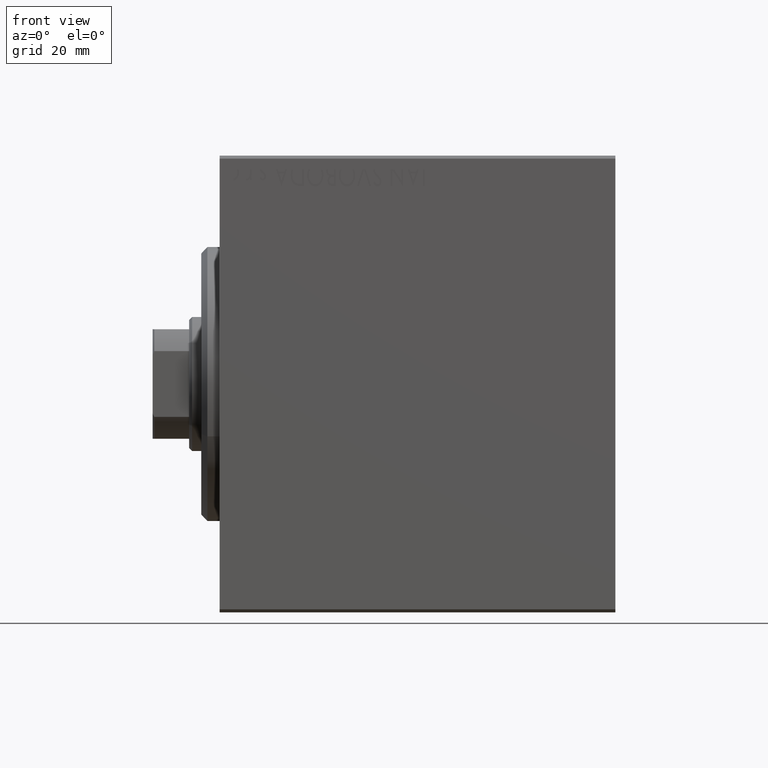
[diagram: clean part render]
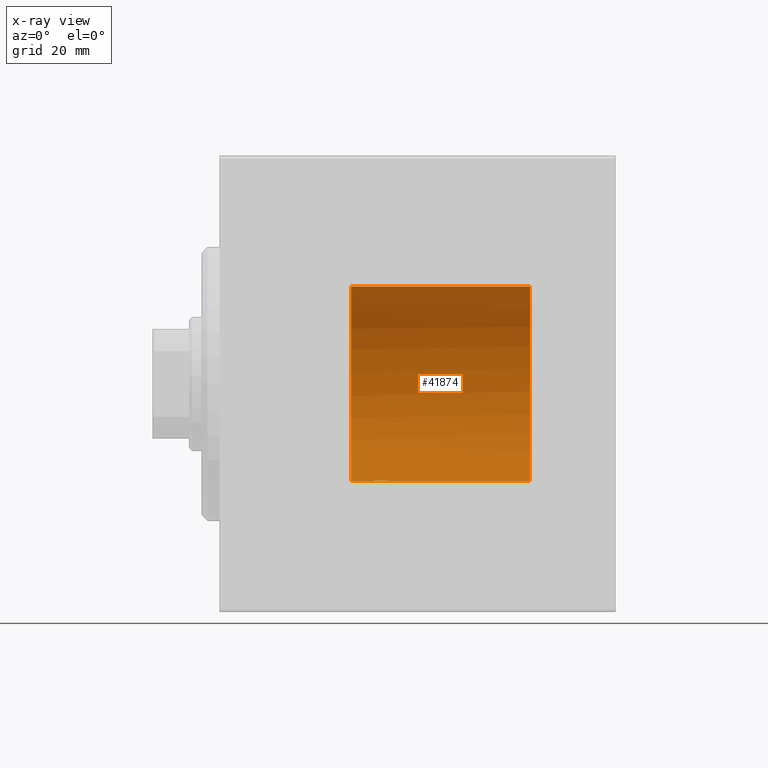
[diagram: x-ray — body ghosted, one internal face saturated and labeled with its STEP entity id]
A machine part, front view, then the same camera in x-ray: the body is ghosted and one INTERNAL B-rep face — a face not visible from any outside direction — is saturated and labeled: STEP entity #41874.
In plain terms, the highlighted cylindrical surface (partial cylindrical patch) has radius 16 mm, axis along (-1, -0, -0).
Its self-contained STEP definition (entity closure, byte-faithful):
#347 = AXIS2_PLACEMENT_3D ( 'NONE', #24368, #26651, #28139 ) ;
#1041 = CIRCLE ( 'NONE', #347, 16.00000000000000000 ) ;
#1245 = CARTESIAN_POINT ( 'NONE',  ( 25.49340818440419199, 1.747750603376302614, -15.90457341008072412 ) ) ;
#1322 = CARTESIAN_POINT ( 'NONE',  ( 50.72464463578930349, 0.9286979439677397474, -15.97335625374555335 ) ) ;
#1685 = VERTEX_POINT ( 'NONE', #29152 ) ;
#2088 = AXIS2_PLACEMENT_3D ( 'NONE', #10164, #20174, #40856 ) ;
#4159 = CARTESIAN_POINT ( 'NONE',  ( 27.82075824828932653, 1.507649250492136606, -15.92908549642227101 ) ) ;
#4378 = CARTESIAN_POINT ( 'NONE',  ( 24.50000000000000000, 0.1322838750249235862, -16.00000000000000355 ) ) ;
#4815 = CARTESIAN_POINT ( 'NONE',  ( 28.23482670674955486, 1.003662148334367954, -15.96885838080211073 ) ) ;
#7281 = CARTESIAN_POINT ( 'NONE',  ( 24.99389287531754178, 1.322357532253823909, -15.94553003295877325 ) ) ;
#7932 = CARTESIAN_POINT ( 'NONE',  ( 28.49999999999999645, 1.959434851239213200E-15, -16.00000000000000000 ) ) ;
#8883 = CARTESIAN_POINT ( 'NONE',  ( 51.00000000000000000, 0.000000000000000000, 16.00000000000000000 ) ) ;
#9117 = VECTOR ( 'NONE', #22094, 1000.000000000000000 ) ;
#9739 = VERTEX_POINT ( 'NONE', #13221 ) ;
#10164 = CARTESIAN_POINT ( 'NONE',  ( 51.00000000000000000, 0.000000000000000000, 0.000000000000000000 ) ) ;
#10618 = CARTESIAN_POINT ( 'NONE',  ( 28.49999999999999645, 0.1305944228192321699, -16.00000000000000000 ) ) ;
#10832 = CARTESIAN_POINT ( 'NONE',  ( 24.60241129944407135, 0.6452446332038127563, -15.98744362947834574 ) ) ;
#10999 = CARTESIAN_POINT ( 'NONE',  ( 24.50000000000000000, -2.103178745110437193E-15, -16.00000000000000000 ) ) ;
#11441 = ORIENTED_EDGE ( 'NONE', *, *, #43290, .F. ) ;
#11566 = CARTESIAN_POINT ( 'NONE',  ( 50.50000000000000000, 1.959434878635765526E-15, -16.00000000000000000 ) ) ;
#12433 = DIRECTION ( 'NONE',  ( -1.000000000000000000, 0.000000000000000000, 0.000000000000000000 ) ) ;
#13221 = CARTESIAN_POINT ( 'NONE',  ( 50.99999999999999289, 1.322875655532287809, -15.94521871910197675 ) ) ;
#14050 = CARTESIAN_POINT ( 'NONE',  ( 51.00000000000000000, 1.959434878635765131E-15, -16.00000000000000000 ) ) ;
#14171 = CARTESIAN_POINT ( 'NONE',  ( 24.70286585251780664, 0.8874076679346751817, -15.97583181162461408 ) ) ;
#14388 = CARTESIAN_POINT ( 'NONE',  ( 25.97468243540595978, 1.947280337074166923, -15.88137861827786779 ) ) ;
#14914 = LINE ( 'NONE', #8883, #38264 ) ;
#15384 = ORIENTED_EDGE ( 'NONE', *, *, #16464, .T. ) ;
#15477 = CARTESIAN_POINT ( 'NONE',  ( 28.49999999999999645, 1.959434851239213200E-15, -16.00000000000000000 ) ) ;
#15737 = ORIENTED_EDGE ( 'NONE', *, *, #41418, .T. ) ;
#16464 = EDGE_CURVE ( 'NONE', #32147, #21236, #25851, .T. ) ;
#17060 = CYLINDRICAL_SURFACE ( 'NONE', #2088, 16.00000000000000000 ) ;
#17738 = CARTESIAN_POINT ( 'NONE',  ( 28.29749928605040665, 0.8866640484200122296, -15.97587307151818514 ) ) ;
#18033 = CARTESIAN_POINT ( 'NONE',  ( 50.67218159183688897, 0.8208159241335455381, -15.97933385611439938 ) ) ;
#18392 = CARTESIAN_POINT ( 'NONE',  ( 27.14386968033013758, 1.898058445420891305, -15.88709929148890510 ) ) ;
#18901 = CARTESIAN_POINT ( 'NONE',  ( 50.99999999999999289, 1.322875655532287809, -15.94521871910197675 ) ) ;
#20174 = DIRECTION ( 'NONE',  ( -1.000000000000000000, -0.000000000000000000, -0.000000000000000000 ) ) ;
#21236 = VERTEX_POINT ( 'NONE', #15477 ) ;
#21726 = CARTESIAN_POINT ( 'NONE',  ( 24.50000000000000000, -2.103178745110437193E-15, -16.00000000000000000 ) ) ;
#21803 = CARTESIAN_POINT ( 'NONE',  ( 50.54367868930802388, 0.4810848027709638819, -15.99437258783358651 ) ) ;
#21902 = CARTESIAN_POINT ( 'NONE',  ( 21.60000000000000142, 1.959434878635765131E-15, -16.00000000000000000 ) ) ;
#22094 = DIRECTION ( 'NONE',  ( -1.000000000000000000, -0.000000000000000000, -0.000000000000000000 ) ) ;
#23288 = EDGE_CURVE ( 'NONE', #1685, #9739, #1041, .T. ) ;
#24192 = CARTESIAN_POINT ( 'NONE',  ( 26.23808537237744787, 1.999903730784159617, -15.87451999516785861 ) ) ;
#24368 = CARTESIAN_POINT ( 'NONE',  ( 51.00000000000000000, 0.000000000000000000, 0.000000000000000000 ) ) ;
#24406 = CARTESIAN_POINT ( 'NONE',  ( 25.27043888260214999, 1.598790766515152173, -15.92099550861380486 ) ) ;
#24614 = CARTESIAN_POINT ( 'NONE',  ( 24.51299475991587329, 0.2623312429553279479, -15.99836091803360105 ) ) ;
#24724 = ORIENTED_EDGE ( 'NONE', *, *, #35395, .T. ) ;
#24921 = CARTESIAN_POINT ( 'NONE',  ( 50.84826768755139881, 1.134084171644547778, -15.96008906528493476 ) ) ;
#25137 = CARTESIAN_POINT ( 'NONE',  ( 50.92027417147126300, 1.232475063237039592, -15.95271869416660060 ) ) ;
#25851 = B_SPLINE_CURVE_WITH_KNOTS ( 'NONE', 3,
 ( #21726, #4378, #24614, #27751, #10832, #14171, #38424, #34636, #7281, #24406, #1245, #14388, #24192, #27962, #31516, #41309, #18392, #38636, #38199, #41091, #4159, #41966, #35291, #4815, #17738, #35071, #31730, #37981, #10618, #7932 ),
 .UNSPECIFIED., .F., .F.,
 ( 4, 2, 2, 2, 2, 2, 2, 2, 2, 2, 2, 2, 2, 2, 4 ),
 ( 6.061338176617876434E-19, 0.0003911894522871146732, 0.0007823789045742288043, 0.001173568356861343261, 0.001564757809148457609, 0.002347136713722686955, 0.003129515618296916518, 0.003520705070584036721, 0.003911894522871156923, 0.004303083975158277993, 0.004694273427445398196, 0.005085462879732518399, 0.005476652332019638601, 0.005867841784306759671, 0.006259031236593879007 ),
 .UNSPECIFIED. ) ;
#26651 = DIRECTION ( 'NONE',  ( -1.000000000000000000, 0.000000000000000000, 0.000000000000000000 ) ) ;
#27295 = FACE_OUTER_BOUND ( 'NONE', #43464, .T. ) ;
#27643 = CIRCLE ( 'NONE', #33330, 16.00000000000000000 ) ;
#27751 = CARTESIAN_POINT ( 'NONE',  ( 24.56388673317935556, 0.5181437283162043661, -15.99211983514074653 ) ) ;
#27962 = CARTESIAN_POINT ( 'NONE',  ( 26.62985308350499025, 2.000047931387146871, -15.87450182760080253 ) ) ;
#28139 = DIRECTION ( 'NONE',  ( 0.000000000000000000, 0.000000000000000000, 1.000000000000000000 ) ) ;
#28386 = ORIENTED_EDGE ( 'NONE', *, *, #36347, .F. ) ;
#28427 = CARTESIAN_POINT ( 'NONE',  ( 21.60000000000000142, 0.000000000000000000, 16.00000000000000000 ) ) ;
#28478 = CARTESIAN_POINT ( 'NONE',  ( 50.50000000000000711, 0.2433491955511186966, -16.00000000000000355 ) ) ;
#28483 = DIRECTION ( 'NONE',  ( -1.000000000000000000, -0.000000000000000000, -0.000000000000000000 ) ) ;
#29152 = CARTESIAN_POINT ( 'NONE',  ( 51.00000000000000000, 0.000000000000000000, 16.00000000000000000 ) ) ;
#31516 = CARTESIAN_POINT ( 'NONE',  ( 26.76251583007899271, 1.987008272775795614, -15.87616016863256263 ) ) ;
#31730 = CARTESIAN_POINT ( 'NONE',  ( 28.43569052926130070, 0.5198215460038754232, -15.99206840425679310 ) ) ;
#32147 = VERTEX_POINT ( 'NONE', #10999 ) ;
#32211 = VERTEX_POINT ( 'NONE', #21902 ) ;
#33030 = B_SPLINE_CURVE_WITH_KNOTS ( 'NONE', 3,
 ( #11566, #28478, #21803, #18033, #1322, #24921, #25137, #18901 ),
 .UNSPECIFIED., .F., .F.,
 ( 4, 2, 2, 4 ),
 ( 9.214096943730415343E-18, 0.0007196314630503429510, 0.001079447194575513342, 0.001439262926100683950 ),
 .UNSPECIFIED. ) ;
#33330 = AXIS2_PLACEMENT_3D ( 'NONE', #43576, #12433, #36919 ) ;
#34636 = CARTESIAN_POINT ( 'NONE',  ( 24.90948495147901554, 1.219564485341768645, -15.95382484008323409 ) ) ;
#34643 = EDGE_CURVE ( 'NONE', #36069, #9739, #33030, .T. ) ;
#34949 = VERTEX_POINT ( 'NONE', #28427 ) ;
#35071 = CARTESIAN_POINT ( 'NONE',  ( 28.39783726498895433, 0.6445079780200565489, -15.98747331501412106 ) ) ;
#35291 = CARTESIAN_POINT ( 'NONE',  ( 28.09001528100123224, 1.220169175415120932, -15.95377581882983797 ) ) ;
#35395 = EDGE_CURVE ( 'NONE', #1685, #34949, #14914, .T. ) ;
#36069 = VERTEX_POINT ( 'NONE', #36367 ) ;
#36347 = EDGE_CURVE ( 'NONE', #32147, #32211, #36530, .T. ) ;
#36367 = CARTESIAN_POINT ( 'NONE',  ( 50.50000000000000000, 1.959434878635765526E-15, -16.00000000000000000 ) ) ;
#36530 = LINE ( 'NONE', #43186, #9117 ) ;
#36919 = DIRECTION ( 'NONE',  ( 0.000000000000000000, 0.000000000000000000, 1.000000000000000000 ) ) ;
#37205 = LINE ( 'NONE', #14050, #40504 ) ;
#37981 = CARTESIAN_POINT ( 'NONE',  ( 28.48690924832125759, 0.2632563459770846381, -15.99834873924246814 ) ) ;
#38199 = CARTESIAN_POINT ( 'NONE',  ( 27.50311247035038775, 1.735145127817748323, -15.90580292899658410 ) ) ;
#38264 = VECTOR ( 'NONE', #28483, 1000.000000000000000 ) ;
#38424 = CARTESIAN_POINT ( 'NONE',  ( 24.76431901501738864, 1.002241074716281544, -15.96895041604536125 ) ) ;
#38636 = CARTESIAN_POINT ( 'NONE',  ( 27.38617757057268420, 1.797743958659262731, -15.89876304682111652 ) ) ;
#38953 = ORIENTED_EDGE ( 'NONE', *, *, #23288, .F. ) ;
#39766 = ORIENTED_EDGE ( 'NONE', *, *, #34643, .T. ) ;
#40504 = VECTOR ( 'NONE', #41196, 1000.000000000000000 ) ;
#40856 = DIRECTION ( 'NONE',  ( 0.000000000000000000, 0.000000000000000000, 1.000000000000000000 ) ) ;
#41091 = CARTESIAN_POINT ( 'NONE',  ( 27.71967657442277400, 1.590393755196007008, -15.92092783521424337 ) ) ;
#41196 = DIRECTION ( 'NONE',  ( -1.000000000000000000, -0.000000000000000000, -0.000000000000000000 ) ) ;
#41309 = CARTESIAN_POINT ( 'NONE',  ( 27.01913097710113121, 1.935876924222081907, -15.88247600692093187 ) ) ;
#41418 = EDGE_CURVE ( 'NONE', #34949, #32211, #27643, .T. ) ;
#41874 = ADVANCED_FACE ( 'NONE', ( #27295 ), #17060, .F. ) ;
#41966 = CARTESIAN_POINT ( 'NONE',  ( 28.00737160312429452, 1.321075116345887368, -15.94564302722882587 ) ) ;
#43186 = CARTESIAN_POINT ( 'NONE',  ( 51.00000000000000000, 1.959434878635765131E-15, -16.00000000000000000 ) ) ;
#43290 = EDGE_CURVE ( 'NONE', #36069, #21236, #37205, .T. ) ;
#43464 = EDGE_LOOP ( 'NONE', ( #11441, #39766, #38953, #24724, #15737, #28386, #15384 ) ) ;
#43576 = CARTESIAN_POINT ( 'NONE',  ( 21.60000000000000142, 0.000000000000000000, 0.000000000000000000 ) ) ;